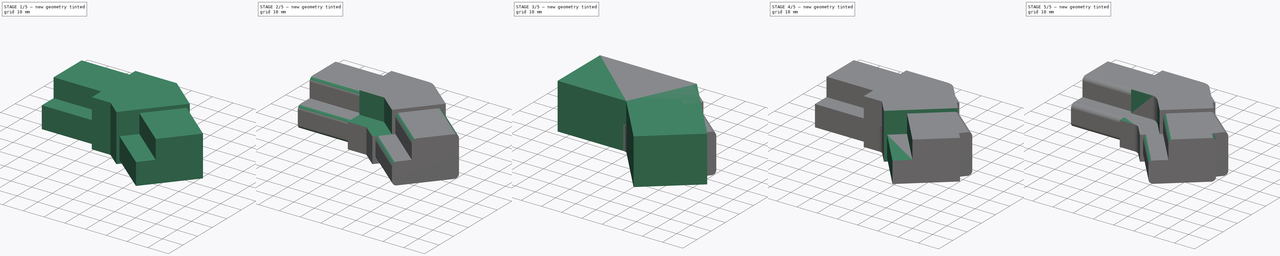
[diagram: build sequence overview — one tinted view per stage of 5, left to right]
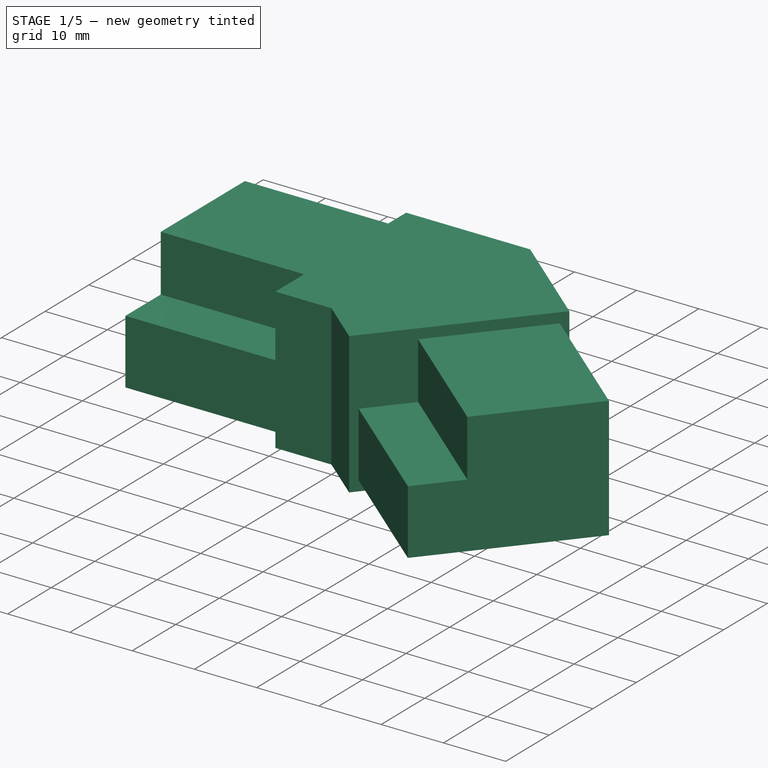
[diagram: stage 1 of 5 — iso view after this stage's code; geometry added in this stage tinted green]
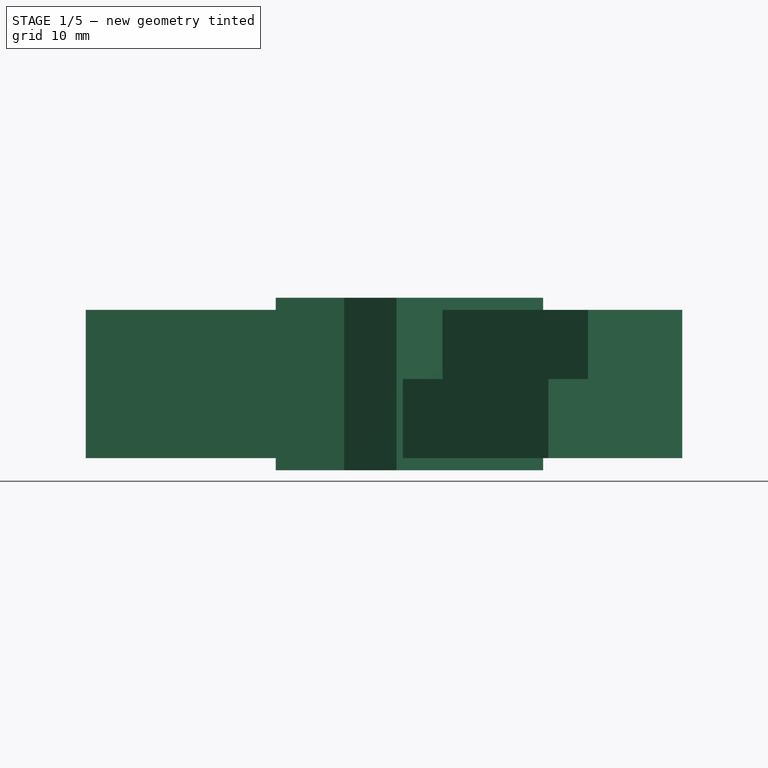
[diagram: stage 1 of 5 — front view after this stage's code; geometry added in this stage tinted green]
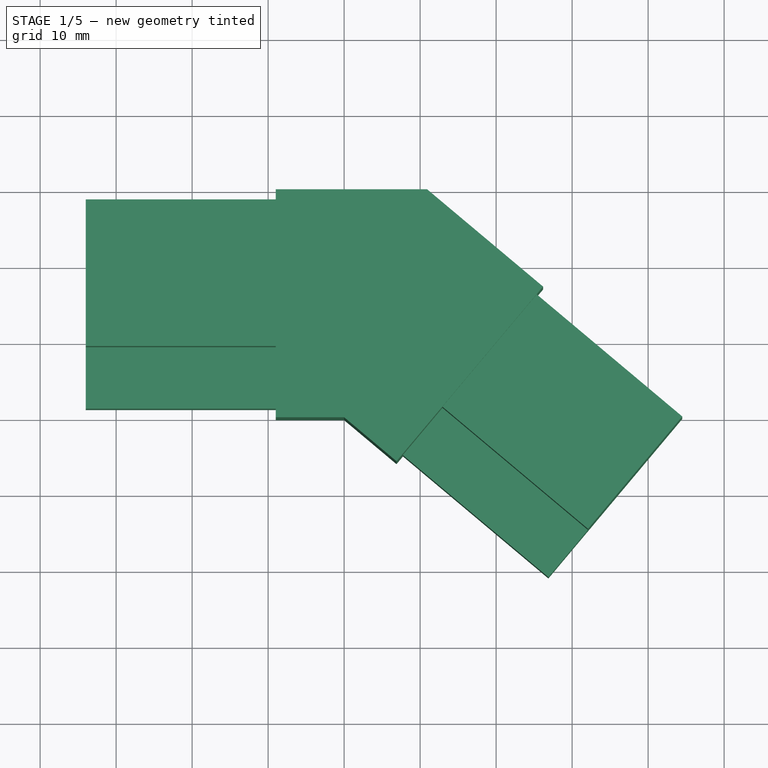
[diagram: stage 1 of 5 — top view after this stage's code; geometry added in this stage tinted green]
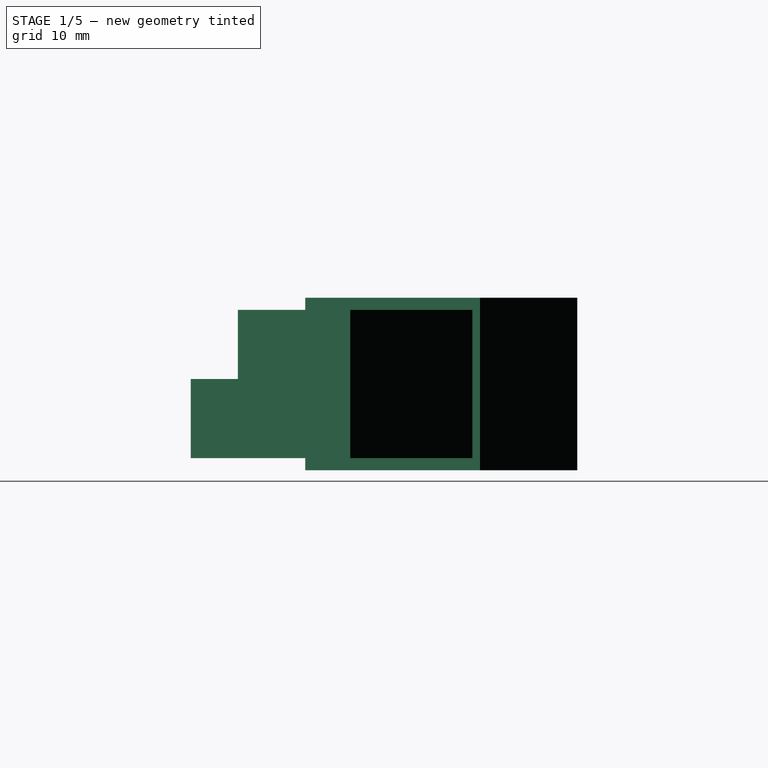
[diagram: stage 1 of 5 — right view after this stage's code; geometry added in this stage tinted green]
FCSTD DOCUMENT  (FreeCAD 2024.2R37179 (Git))
Label: Hor-Deur
License: All rights reserved
LicenseURL: https://en.wikipedia.org/wiki/All_rights_reserved
objects: Sketcher::SketchObject×9, PartDesign::Pocket×7, PartDesign::Fillet×6, PartDesign::Pad×2, PartDesign::Body×2
note: 41 computed .brp shape members not serialized (recipe doc carries the construction recipe); baked Part::Feature solids carry a one-line shape summary decoded from their .brp

FEATURE [PartDesign::Body] Body  label="Body 40 gr"
  Group = -> [Sketch,Pad,Sketch001,Pocket,Sketch002,Pocket001,Fillet,Fillet001,Sketch003,Pocket002,Fillet002]
  Origin = -> Origin
  Tip = -> Fillet002
FEATURE [Sketcher::SketchObject] Sketch004
  AttachmentSupport = -> [XY_Plane001]
  FullyConstrained = true
  MapMode = 5
  sketch-geometry (6):
    g0: LineSegment StartX=-34 StartY=0 StartZ=0 EndX=0 EndY=0 EndZ=0
    g1: LineSegment StartX=0 StartY=0 StartZ=0 EndX=26.0455 EndY=-21.8548 EndZ=0
    g2: LineSegment StartX=26.0455 StartY=-21.8548 StartZ=0 EndX=45.3291 EndY=1.12655 EndZ=0
    g3: LineSegment StartX=45.3291 StartY=1.12655 StartZ=0 EndX=10.9191 EndY=30 EndZ=0
    g4: LineSegment StartX=10.9191 StartY=30 StartZ=0 EndX=-34 EndY=30 EndZ=0
    g5: LineSegment StartX=-34 StartY=30 StartZ=0 EndX=-34 EndY=0 EndZ=0
  constraints (17):
    c: PointOnObject(g0,g-1)
    c: Coincident(g0,g-1)
    c: Coincident(g0,g1)
    c: Coincident(g1,g2)
    c: Coincident(g2,g3)
    c: Coincident(g3,g4)
    c: Horizontal(g4)
    c: Coincident(g4,g5)
    c: Coincident(g5,g0)
    c: Vertical(g5)
    c: Angle(g0,g1) = 2.44346
    c: Angle(g4,g3) = 2.44346
    c: Angle(g2,g1) = 1.5708
    c: DistanceY(g5,g5) = 30
    c: Distance(g2,g2) = 30
    c: DistanceX(g0,g0) = 34
    c: Equal(g0,g1)
FEATURE [PartDesign::Pad] Pad001
  Direction = (0,0,1)
  Length = 22.7
  Length2 = 10
  Profile = -> Sketch004
  ReferenceAxis = -> Sketch004 [N_Axis]
  Refine = true
  Suppressed = false
  Type = 0
FEATURE [Sketcher::SketchObject] Sketch005
  AttachmentSupport = -> [Pad001]
  ExternalGeometry = -> [Pad001]
  FullyConstrained = true
  MapMode = 5
  Placement = pos=(26.0455,-21.8548,0) rot=(0.834817,0.389282,0.389282;1.75037rad)
  sketch-geometry (11):
    g0: LineSegment StartX=1.3 StartY=1.6 StartZ=0 EndX=28.7 EndY=1.6 EndZ=0
    g1: LineSegment StartX=28.7 StartY=1.6 StartZ=0 EndX=28.7 EndY=21.1 EndZ=0
    g2: LineSegment StartX=28.7 StartY=21.1 StartZ=0 EndX=9.4 EndY=21.1 EndZ=0
    g3: LineSegment StartX=9.4 StartY=21.1 StartZ=0 EndX=9.4 EndY=12 EndZ=0
    g4: LineSegment StartX=9.4 StartY=12 StartZ=0 EndX=1.3 EndY=12 EndZ=0
    g5: LineSegment StartX=1.3 StartY=12 StartZ=0 EndX=1.3 EndY=1.6 EndZ=0
    g6: GeomPoint X=15 Y=11.35 Z=0
    g7: LineSegment StartX=0 StartY=22.7 StartZ=0 EndX=0 EndY=0 EndZ=0
    g8: LineSegment StartX=0 StartY=0 StartZ=0 EndX=30 EndY=0 EndZ=0
    g9: LineSegment StartX=30 StartY=0 StartZ=0 EndX=30 EndY=22.7 EndZ=0
    g10: LineSegment StartX=30 StartY=22.7 StartZ=0 EndX=0 EndY=22.7 EndZ=0
  constraints (28):
    c: Horizontal(g0)
    c: Coincident(g0,g1)
    c: Vertical(g1)
    c: Coincident(g1,g2)
    c: Horizontal(g2)
    c: Coincident(g2,g3)
    c: Vertical(g3)
    c: Coincident(g3,g4)
    c: Horizontal(g4)
    c: Coincident(g4,g5)
    c: Coincident(g5,g0)
    c: Vertical(g5)
    c: DistanceX(g0,g0) = 27.4
    c: DistanceX(g2,g2) = 19.3
    c: DistanceY(g5,g5) = 10.4
    c: DistanceY(g1,g1) = 19.5
    c: Symmetric(g0,g1,g6)
    c: Symmetric(g-1,g-3,g6)
    c: Coincident(g7,g8)
    c: Coincident(g8,g9)
    c: Coincident(g9,g10)
    c: Coincident(g10,g7)
    c: Vertical(g7)
    c: Vertical(g9)
    c: Horizontal(g8)
    c: Horizontal(g10)
    c: Coincident(g7,g-3)
    c: Coincident(g8,g-4)
FEATURE [PartDesign::Pocket] Pocket003
  BaseFeature = -> Pad001
  Direction = (-0.766044,0.642788,2e-16)
  Length = 25
  Length2 = 5
  Profile = -> Sketch005
  ReferenceAxis = -> Sketch005 [N_Axis]
  Refine = true
  Suppressed = false
  Type = 0
FEATURE [Sketcher::SketchObject] Sketch006
  AttachmentSupport = -> [Pocket003]
  ExternalGeometry = -> [Pocket003]
  FullyConstrained = true
  MapMode = 5
  Placement = pos=(-34,0,0) rot=(0.57735,-0.57735,-0.57735;2.0944rad)
  sketch-geometry (11):
    g0: LineSegment StartX=-28.7 StartY=21.1 StartZ=0 EndX=-28.7 EndY=1.6 EndZ=0
    g1: LineSegment StartX=-28.7 StartY=1.6 StartZ=0 EndX=-1.3 EndY=1.6 EndZ=0
    g2: LineSegment StartX=-1.3 StartY=1.6 StartZ=0 EndX=-1.3 EndY=12 EndZ=0
    g3: LineSegment StartX=-1.3 StartY=12 StartZ=0 EndX=-9.4 EndY=12 EndZ=0
    g4: LineSegment StartX=-9.4 StartY=12 StartZ=0 EndX=-9.4 EndY=21.1 EndZ=0
    g5: LineSegment StartX=-9.4 StartY=21.1 StartZ=0 EndX=-28.7 EndY=21.1 EndZ=0
    g6: GeomPoint X=-15 Y=11.35 Z=0
    g7: LineSegment StartX=-30 StartY=22.7 StartZ=0 EndX=-30 EndY=0 EndZ=0
    g8: LineSegment StartX=-30 StartY=0 StartZ=0 EndX=0 EndY=0 EndZ=0
    g9: LineSegment StartX=0 StartY=0 StartZ=0 EndX=0 EndY=22.7 EndZ=0
    g10: LineSegment StartX=0 StartY=22.7 StartZ=0 EndX=-30 EndY=22.7 EndZ=0
  constraints (28):
    c: Vertical(g0)
    c: Coincident(g0,g1)
    c: Horizontal(g1)
    c: Coincident(g1,g2)
    c: Vertical(g2)
    c: Coincident(g2,g3)
    c: Coincident(g3,g4)
    c: Coincident(g4,g5)
    c: Coincident(g5,g0)
    c: Horizontal(g5)
    c: Vertical(g4)
    c: Horizontal(g3)
    c: DistanceX(g5,g5) = 19.3
    c: DistanceX(g1,g1) = 27.4
    c: DistanceY(g0,g0) = 19.5
    c: DistanceY(g2,g2) = 10.4
    c: Symmetric(g0,g1,g6)
    c: Symmetric(g-3,g-1,g6)
    c: Coincident(g7,g8)
    c: Coincident(g8,g9)
    c: Coincident(g9,g10)
    c: Coincident(g10,g7)
    c: Vertical(g7)
    c: Vertical(g9)
    c: Horizontal(g8)
    c: Horizontal(g10)
    c: Coincident(g7,g-3)
    c: Coincident(g8,g-1)
FEATURE [PartDesign::Pocket] Pocket004
  BaseFeature = -> Pocket003
  Direction = (1,0,0)
  Length = 25
  Length2 = 5
  Profile = -> Sketch006
  ReferenceAxis = -> Sketch006 [N_Axis]
  Refine = true
  Suppressed = false
  Type = 0
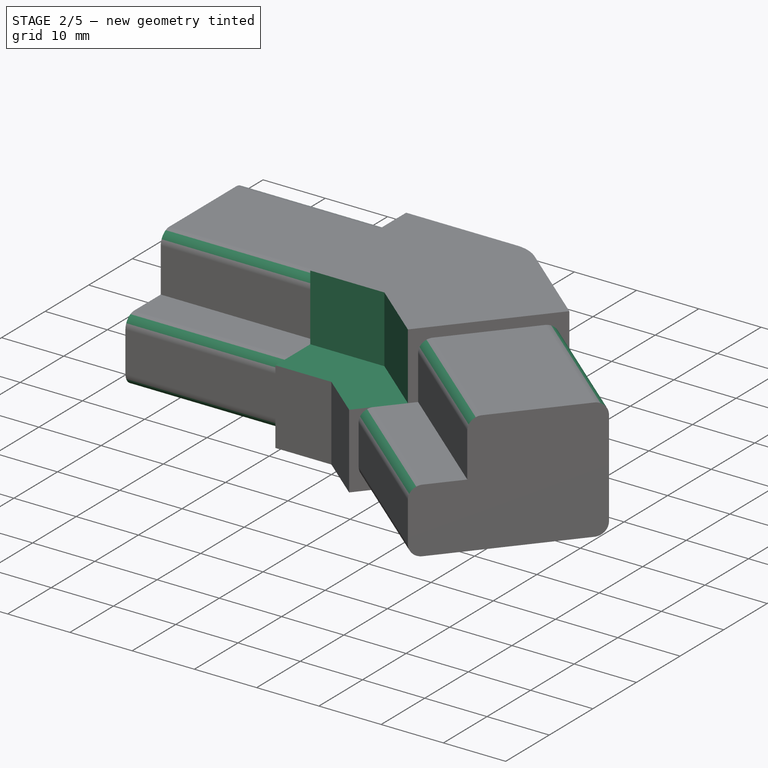
[diagram: stage 2 of 5 — iso view after this stage's code; geometry added in this stage tinted green]
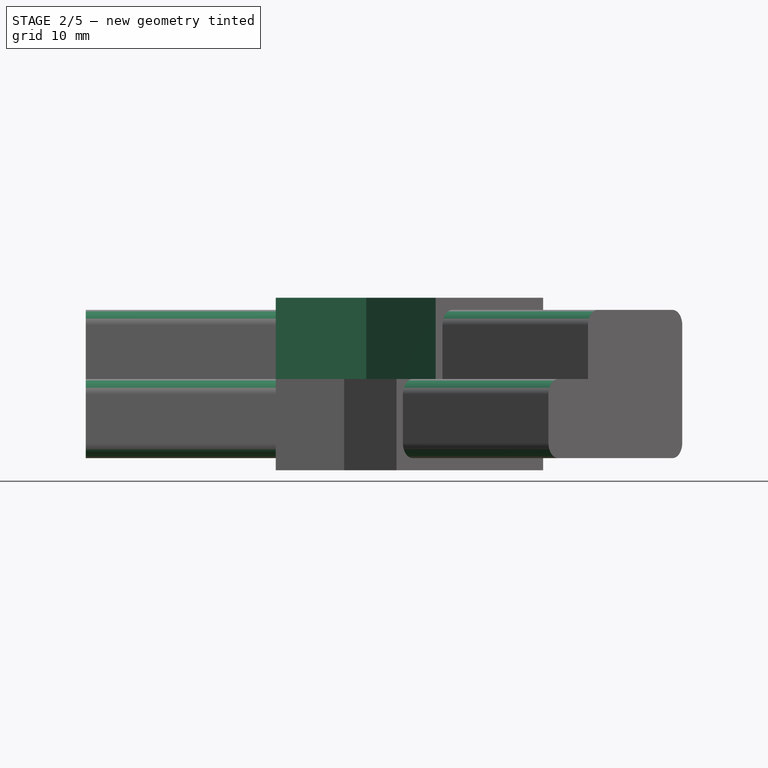
[diagram: stage 2 of 5 — front view after this stage's code; geometry added in this stage tinted green]
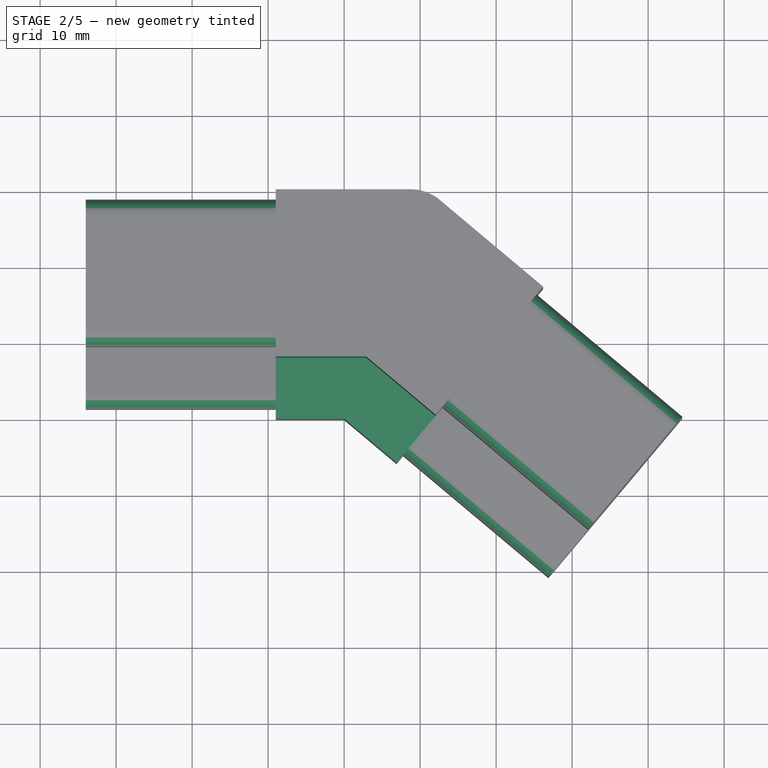
[diagram: stage 2 of 5 — top view after this stage's code; geometry added in this stage tinted green]
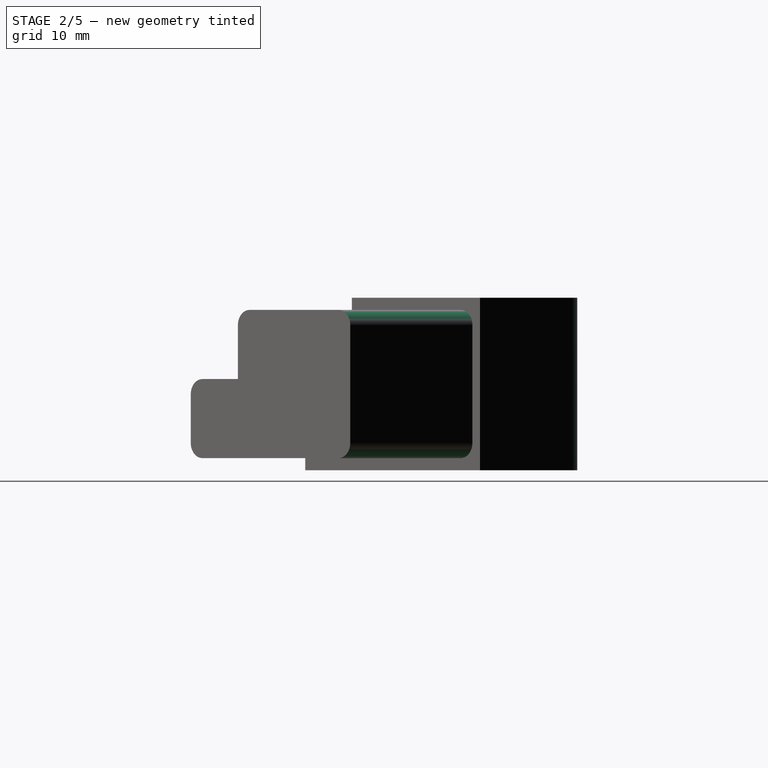
[diagram: stage 2 of 5 — right view after this stage's code; geometry added in this stage tinted green]
FEATURE [PartDesign::Fillet] Fillet003
  Base = -> Pocket004 [Edge23]
  BaseFeature = -> Pocket004
  Radius = 6
  Refine = true
  SupportTransform = false
  Suppressed = false
  UseAllEdges = false
FEATURE [PartDesign::Fillet] Fillet004
  Base = -> Fillet003 [Edge51,Edge55,Edge46,Edge49,Edge47,Edge35,Edge37,Edge39,Edge43,Edge34]
  BaseFeature = -> Fillet003
  Radius = 2
  Refine = true
  SupportTransform = false
  Suppressed = false
  UseAllEdges = false
FEATURE [Sketcher::SketchObject] Sketch007
  ExternalGeometry = -> [Fillet004]
  FullyConstrained = true
  MapMode = 5
  Placement = pos=(0,0,22.7) rot=(0,0,1;0rad)
  sketch-geometry (6):
    g0: LineSegment StartX=-9 StartY=0 StartZ=0 EndX=0 EndY=0 EndZ=0
    g1: LineSegment StartX=0 StartY=0 StartZ=0 EndX=6.8944 EndY=-5.78509 EndZ=0
    g2: LineSegment StartX=6.8944 StartY=-5.78509 StartZ=0 EndX=12.0367 EndY=0.343267 EndZ=0
    g3: LineSegment StartX=12.0367 StartY=0.343267 StartZ=0 EndX=2.91176 EndY=8 EndZ=0
    g4: LineSegment StartX=2.91176 StartY=8 StartZ=0 EndX=-9 EndY=8 EndZ=0
    g5: LineSegment StartX=-9 StartY=8 StartZ=0 EndX=-9 EndY=0 EndZ=0
  constraints (15):
    c: Coincident(g-6,g0)
    c: Coincident(g0,g-1)
    c: Coincident(g0,g1)
    c: Coincident(g1,g-5)
    c: Coincident(g1,g2)
    c: PointOnObject(g2,g-4)
    c: Coincident(g2,g3)
    c: Coincident(g3,g4)
    c: PointOnObject(g4,g-3)
    c: Horizontal(g4)
    c: Coincident(g4,g5)
    c: Coincident(g5,g0)
    c: Distance(g2,g2) = 8
    c: Equal(g5,g2)
    c: Parallel(g3,g-7)
FEATURE [PartDesign::Pocket] Pocket005
  BaseFeature = -> Fillet004
  Direction = (0,0,-1)
  Length = 0
  Length2 = 5
  Profile = -> Sketch007
  ReferenceAxis = -> Sketch007 [N_Axis]
  Refine = true
  Suppressed = false
  Type = 3
  UpToFace = -> Fillet004 [Face29]
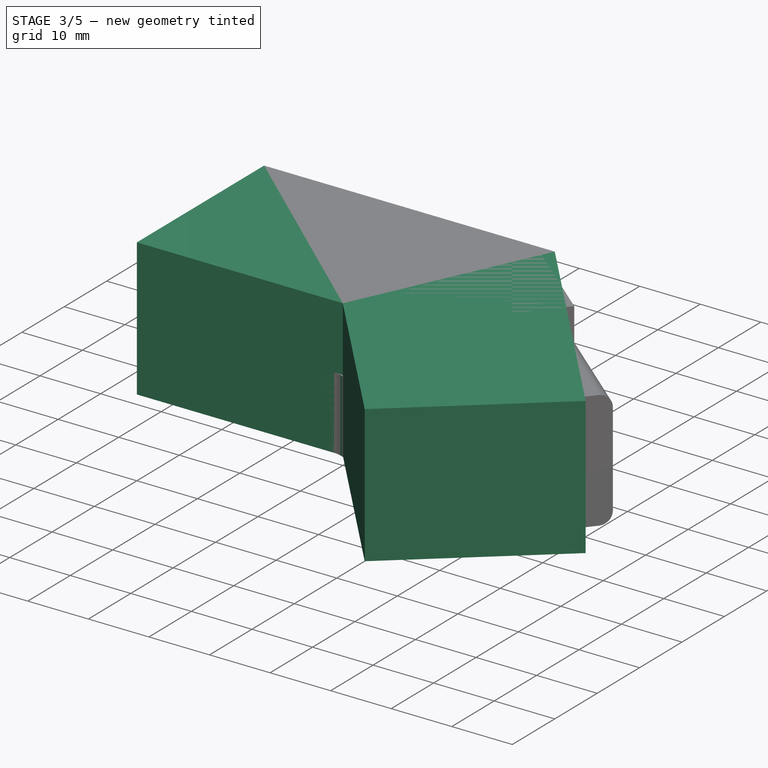
[diagram: stage 3 of 5 — iso view after this stage's code; geometry added in this stage tinted green]
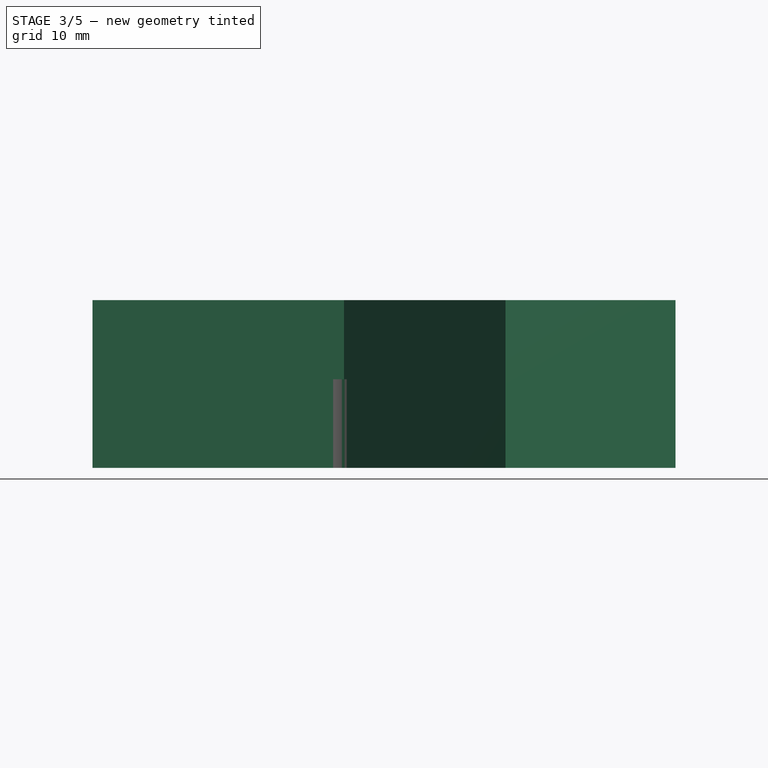
[diagram: stage 3 of 5 — front view after this stage's code; geometry added in this stage tinted green]
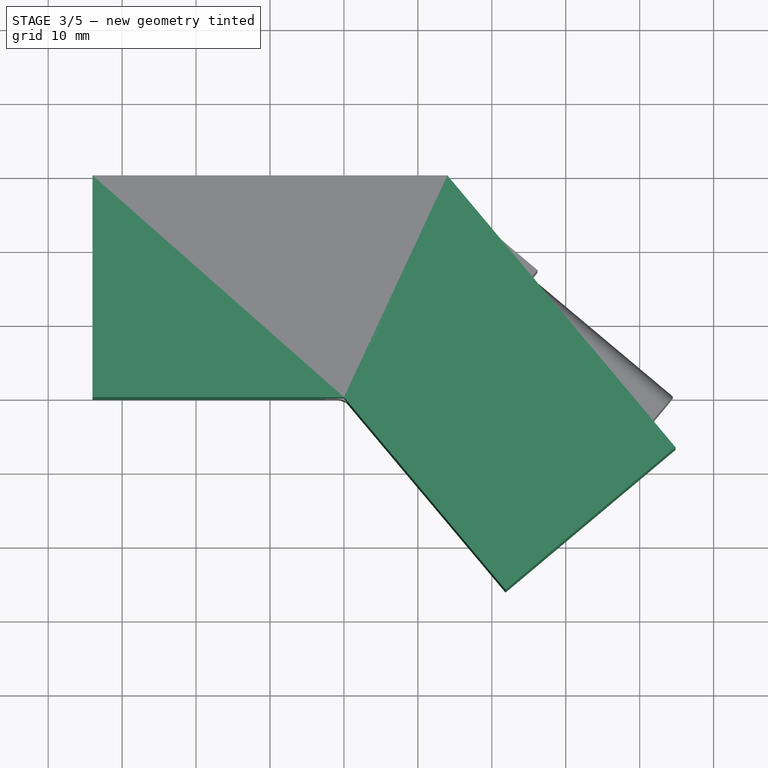
[diagram: stage 3 of 5 — top view after this stage's code; geometry added in this stage tinted green]
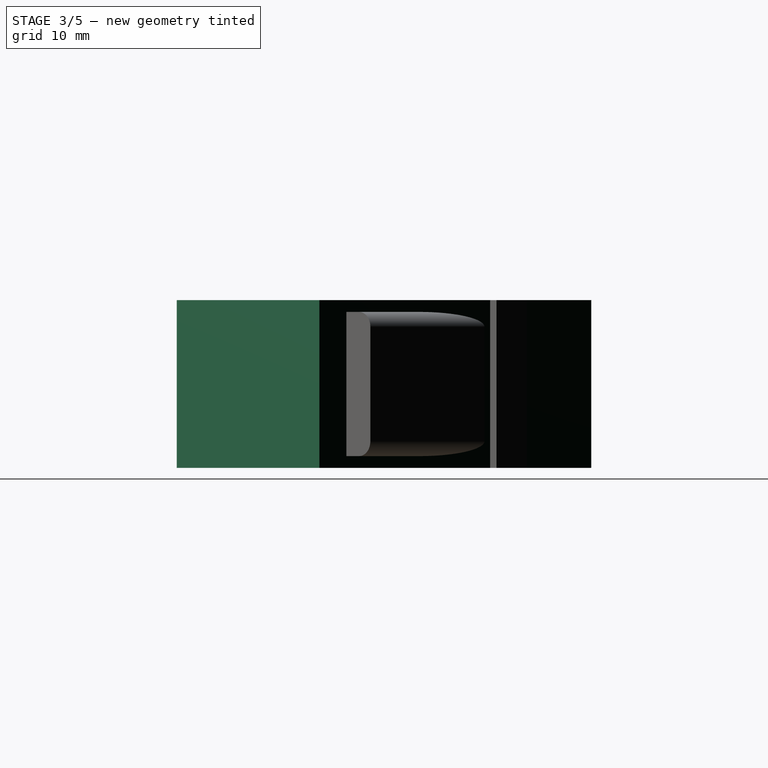
[diagram: stage 3 of 5 — right view after this stage's code; geometry added in this stage tinted green]
FEATURE [Sketcher::SketchObject] Sketch
  AttachmentSupport = -> [XY_Plane]
  FullyConstrained = true
  MapMode = 5
  sketch-geometry (6):
    g0: LineSegment StartX=-34 StartY=0 StartZ=0 EndX=0 EndY=0 EndZ=0
    g1: LineSegment StartX=0 StartY=0 StartZ=0 EndX=21.8548 EndY=-26.0455 EndZ=0
    g2: LineSegment StartX=21.8548 StartY=-26.0455 StartZ=0 EndX=44.8361 EndY=-6.76188 EndZ=0
    g3: LineSegment StartX=44.8361 StartY=-6.76188 StartZ=0 EndX=13.9892 EndY=30 EndZ=0
    g4: LineSegment StartX=13.9892 StartY=30 StartZ=0 EndX=-34 EndY=30 EndZ=0
    g5: LineSegment StartX=-34 StartY=30 StartZ=0 EndX=-34 EndY=0 EndZ=0
  constraints (17):
    c: PointOnObject(g0,g-1)
    c: Coincident(g0,g-1)
    c: Coincident(g0,g1)
    c: Coincident(g1,g2)
    c: Coincident(g2,g3)
    c: Coincident(g3,g4)
    c: Horizontal(g4)
    c: Coincident(g4,g5)
    c: Coincident(g5,g0)
    c: Vertical(g5)
    c: Angle(g0,g1) = 2.26893
    c: Angle(g4,g3) = 2.26893
    c: Angle(g2,g1) = 1.5708
    c: DistanceY(g5,g5) = 30
    c: Distance(g2,g2) = 30
    c: DistanceX(g0,g0) = 34
    c: Equal(g0,g1)
FEATURE [PartDesign::Pad] Pad
  Direction = (0,0,1)
  Length = 22.7
  Length2 = 10
  Profile = -> Sketch
  ReferenceAxis = -> Sketch [N_Axis]
  Refine = true
  Suppressed = false
  Type = 0
FEATURE [PartDesign::Fillet] Fillet005
  Base = -> Pocket005 [Edge45,Edge32]
  BaseFeature = -> Pocket005
  Radius = 4
  Refine = true
  SupportTransform = false
  Suppressed = false
  UseAllEdges = false
FEATURE [Sketcher::SketchObject] Sketch008
  AttachmentSupport = -> [Fillet005]
  ExternalGeometry = -> [Fillet005]
  FullyConstrained = true
  MapMode = 5
  Placement = pos=(0,0,22.7) rot=(0,0,1;0rad)
  sketch-geometry (4):
    g0: LineSegment StartX=-9 StartY=30 StartZ=0 EndX=10.9191 EndY=30 EndZ=0
    g1: LineSegment StartX=26.178 StartY=17.1962 StartZ=0 EndX=10.9191 EndY=30 EndZ=0
    g2: LineSegment StartX=10.9191 StartY=30 StartZ=0 EndX=-5.68089 EndY=30 EndZ=0
    g3: LineSegment StartX=-5.68089 StartY=30 StartZ=0 EndX=-9 EndY=30 EndZ=0
  constraints (9):
    c: Coincident(g-3,g0)
    c: Horizontal(g0)
    c: Tangent(g-4,g1) = -1.5708
    c: Coincident(g1,g0)
    c: Coincident(g0,g2)
    c: PointOnObject(g2,g0)
    c: DistanceX(g2,g2) = 16.6
    c: Coincident(g2,g3)
    c: Coincident(g3,g0)
FEATURE [PartDesign::Pocket] Pocket006
  BaseFeature = -> Fillet005
  Direction = (1,0,0)
  Length = 6.4
  Length2 = 5
  Profile = -> Fillet005 [Face4]
  Refine = true
  Suppressed = false
  Type = 0
FEATURE [PartDesign::Body] Body001  label="Body 50 gr"
  Group = -> [Sketch004,Pad001,Sketch005,Pocket003,Sketch006,Pocket004,Fillet003,Fillet004,Sketch007,Pocket005,Fillet005,Sketch008,Pocket006]
  Origin = -> Origin001
  Placement = pos=(-77,0,0) rot=(0,0,1;0rad)
  Tip = -> Pocket006
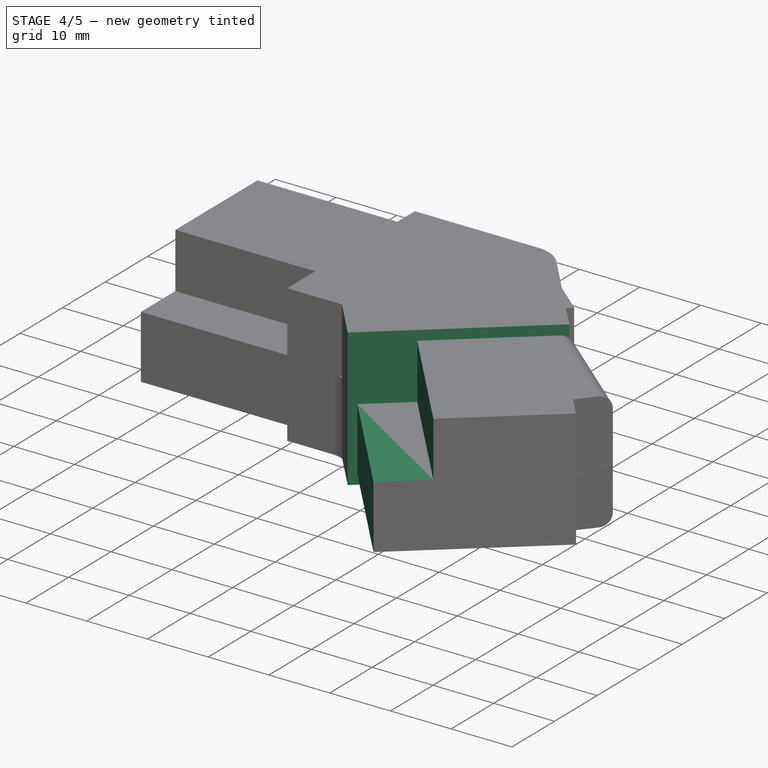
[diagram: stage 4 of 5 — iso view after this stage's code; geometry added in this stage tinted green]
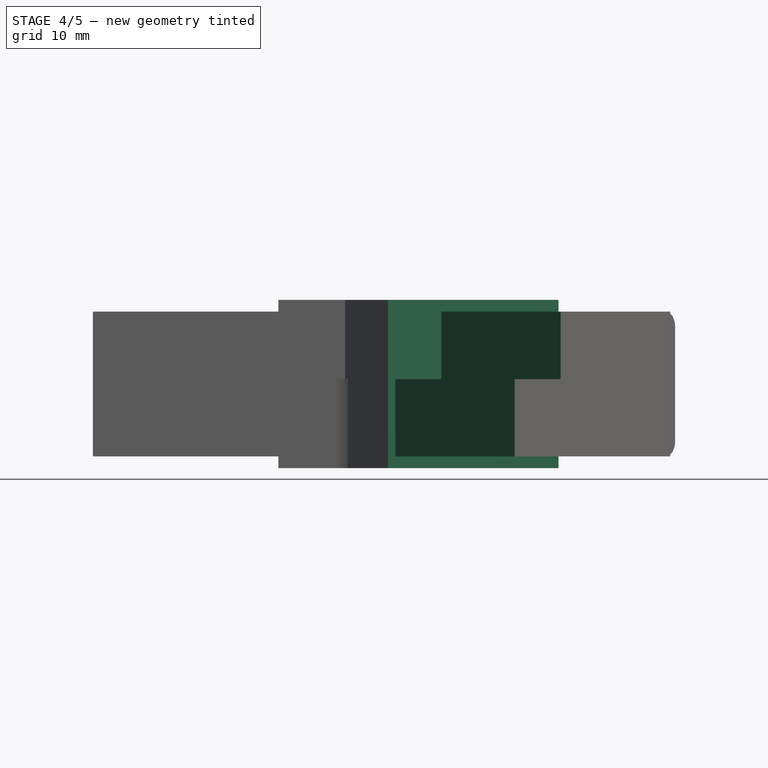
[diagram: stage 4 of 5 — front view after this stage's code; geometry added in this stage tinted green]
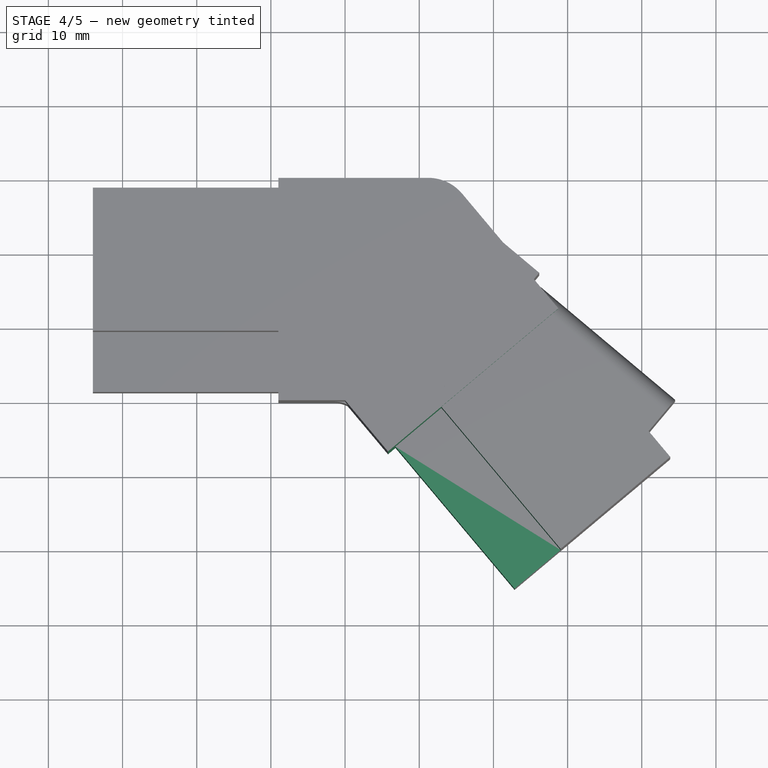
[diagram: stage 4 of 5 — top view after this stage's code; geometry added in this stage tinted green]
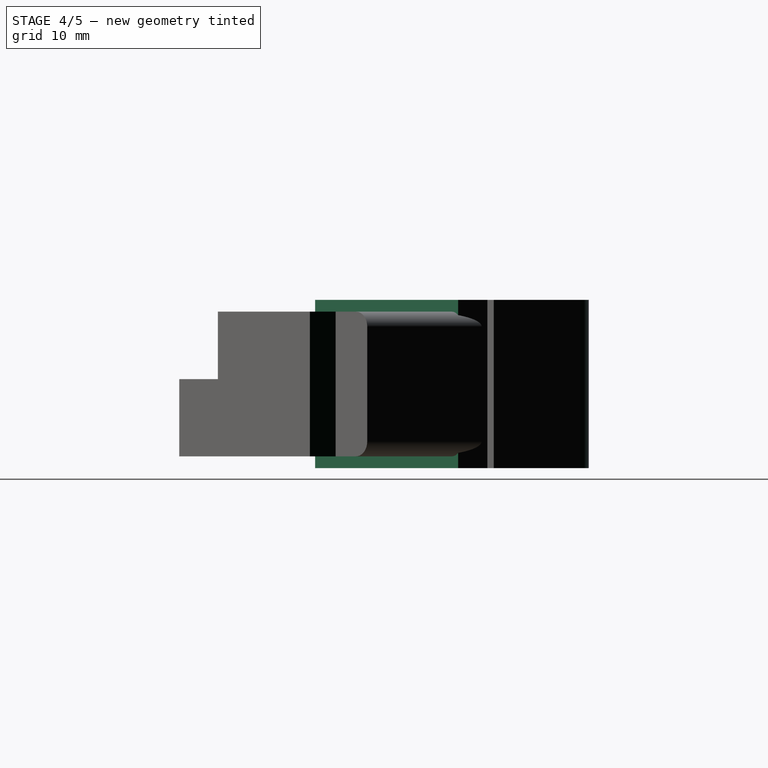
[diagram: stage 4 of 5 — right view after this stage's code; geometry added in this stage tinted green]
FEATURE [Sketcher::SketchObject] Sketch001
  AttachmentSupport = -> [Pad]
  ExternalGeometry = -> [Pad]
  FullyConstrained = true
  MapMode = 5
  Placement = pos=(21.8548,-26.0455,0) rot=(0.889126,0.323616,0.323616;1.68804rad)
  sketch-geometry (11):
    g0: LineSegment StartX=1.3 StartY=1.6 StartZ=0 EndX=28.7 EndY=1.6 EndZ=0
    g1: LineSegment StartX=28.7 StartY=1.6 StartZ=0 EndX=28.7 EndY=21.1 EndZ=0
    g2: LineSegment StartX=28.7 StartY=21.1 StartZ=0 EndX=9.4 EndY=21.1 EndZ=0
    g3: LineSegment StartX=9.4 StartY=21.1 StartZ=0 EndX=9.4 EndY=12 EndZ=0
    g4: LineSegment StartX=9.4 StartY=12 StartZ=0 EndX=1.3 EndY=12 EndZ=0
    g5: LineSegment StartX=1.3 StartY=12 StartZ=0 EndX=1.3 EndY=1.6 EndZ=0
    g6: GeomPoint X=15 Y=11.35 Z=0
    g7: LineSegment StartX=0 StartY=22.7 StartZ=0 EndX=0 EndY=0 EndZ=0
    g8: LineSegment StartX=0 StartY=0 StartZ=0 EndX=30 EndY=0 EndZ=0
    g9: LineSegment StartX=30 StartY=0 StartZ=0 EndX=30 EndY=22.7 EndZ=0
    g10: LineSegment StartX=30 StartY=22.7 StartZ=0 EndX=0 EndY=22.7 EndZ=0
  constraints (28):
    c: Horizontal(g0)
    c: Coincident(g0,g1)
    c: Vertical(g1)
    c: Coincident(g1,g2)
    c: Horizontal(g2)
    c: Coincident(g2,g3)
    c: Vertical(g3)
    c: Coincident(g3,g4)
    c: Horizontal(g4)
    c: Coincident(g4,g5)
    c: Coincident(g5,g0)
    c: Vertical(g5)
    c: DistanceX(g0,g0) = 27.4
    c: DistanceX(g2,g2) = 19.3
    c: DistanceY(g5,g5) = 10.4
    c: DistanceY(g1,g1) = 19.5
    c: Symmetric(g0,g1,g6)
    c: Symmetric(g-1,g-3,g6)
    c: Coincident(g7,g8)
    c: Coincident(g8,g9)
    c: Coincident(g9,g10)
    c: Coincident(g10,g7)
    c: Vertical(g7)
    c: Vertical(g9)
    c: Horizontal(g8)
    c: Horizontal(g10)
    c: Coincident(g7,g-3)
    c: Coincident(g8,g-4)
FEATURE [PartDesign::Pocket] Pocket
  BaseFeature = -> Pad
  Direction = (-0.642788,0.766044,0)
  Length = 25
  Length2 = 5
  Profile = -> Sketch001
  ReferenceAxis = -> Sketch001 [N_Axis]
  Refine = true
  Suppressed = false
  Type = 0
FEATURE [Sketcher::SketchObject] Sketch002
  AttachmentSupport = -> [Pocket]
  ExternalGeometry = -> [Pocket]
  FullyConstrained = true
  MapMode = 5
  Placement = pos=(-34,0,0) rot=(0.57735,-0.57735,-0.57735;2.0944rad)
  sketch-geometry (11):
    g0: LineSegment StartX=-28.7 StartY=21.1 StartZ=0 EndX=-28.7 EndY=1.6 EndZ=0
    g1: LineSegment StartX=-28.7 StartY=1.6 StartZ=0 EndX=-1.3 EndY=1.6 EndZ=0
    g2: LineSegment StartX=-1.3 StartY=1.6 StartZ=0 EndX=-1.3 EndY=12 EndZ=0
    g3: LineSegment StartX=-1.3 StartY=12 StartZ=0 EndX=-9.4 EndY=12 EndZ=0
    g4: LineSegment StartX=-9.4 StartY=12 StartZ=0 EndX=-9.4 EndY=21.1 EndZ=0
    g5: LineSegment StartX=-9.4 StartY=21.1 StartZ=0 EndX=-28.7 EndY=21.1 EndZ=0
    g6: GeomPoint X=-15 Y=11.35 Z=0
    g7: LineSegment StartX=-30 StartY=22.7 StartZ=0 EndX=-30 EndY=0 EndZ=0
    g8: LineSegment StartX=-30 StartY=0 StartZ=0 EndX=0 EndY=0 EndZ=0
    g9: LineSegment StartX=0 StartY=0 StartZ=0 EndX=0 EndY=22.7 EndZ=0
    g10: LineSegment StartX=0 StartY=22.7 StartZ=0 EndX=-30 EndY=22.7 EndZ=0
  constraints (28):
    c: Vertical(g0)
    c: Coincident(g0,g1)
    c: Horizontal(g1)
    c: Coincident(g1,g2)
    c: Vertical(g2)
    c: Coincident(g2,g3)
    c: Coincident(g3,g4)
    c: Coincident(g4,g5)
    c: Coincident(g5,g0)
    c: Horizontal(g5)
    c: Vertical(g4)
    c: Horizontal(g3)
    c: DistanceX(g5,g5) = 19.3
    c: DistanceX(g1,g1) = 27.4
    c: DistanceY(g0,g0) = 19.5
    c: DistanceY(g2,g2) = 10.4
    c: Symmetric(g0,g1,g6)
    c: Symmetric(g-3,g-1,g6)
    c: Coincident(g7,g8)
    c: Coincident(g8,g9)
    c: Coincident(g9,g10)
    c: Coincident(g10,g7)
    c: Vertical(g7)
    c: Vertical(g9)
    c: Horizontal(g8)
    c: Horizontal(g10)
    c: Coincident(g7,g-3)
    c: Coincident(g8,g-1)
FEATURE [PartDesign::Pocket] Pocket001
  BaseFeature = -> Pocket
  Direction = (1,0,0)
  Length = 25
  Length2 = 5
  Profile = -> Sketch002
  ReferenceAxis = -> Sketch002 [N_Axis]
  Refine = true
  Suppressed = false
  Type = 0
FEATURE [PartDesign::Fillet] Fillet
  Base = -> Pocket001 [Edge23]
  BaseFeature = -> Pocket001
  Radius = 6
  Refine = true
  SupportTransform = false
  Suppressed = false
  UseAllEdges = false
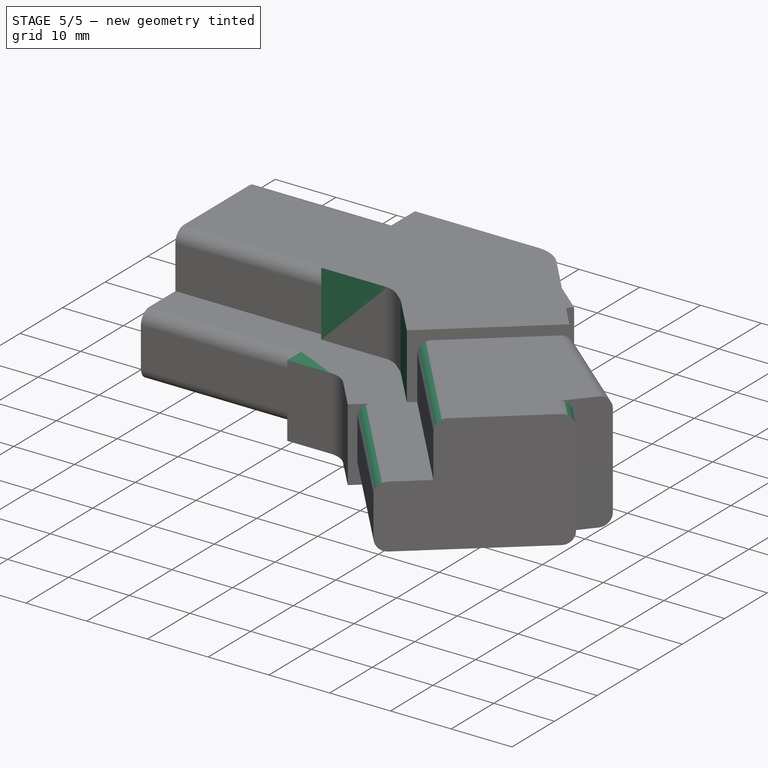
[diagram: stage 5 of 5 — iso view after this stage's code; geometry added in this stage tinted green]
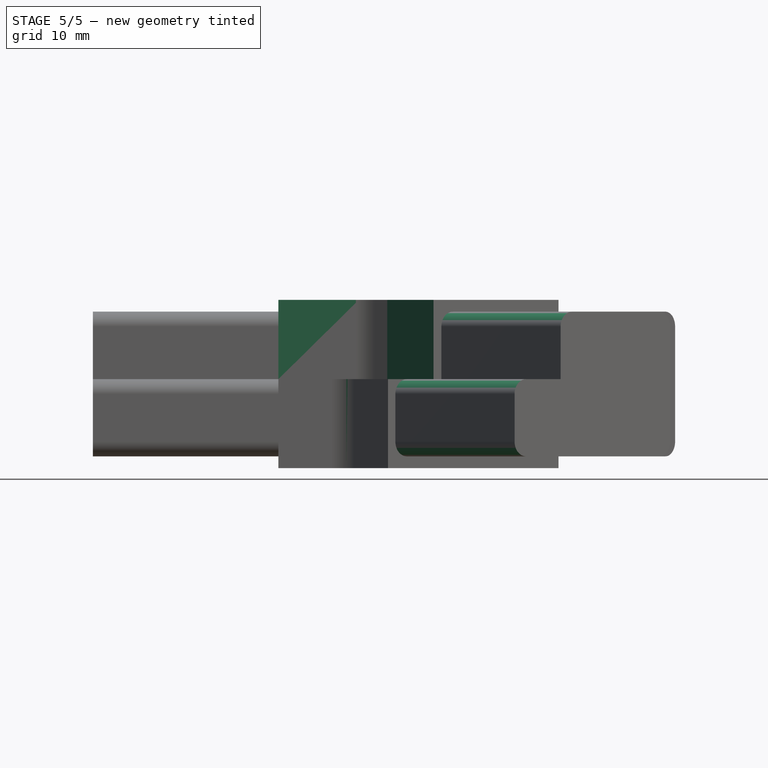
[diagram: stage 5 of 5 — front view after this stage's code; geometry added in this stage tinted green]
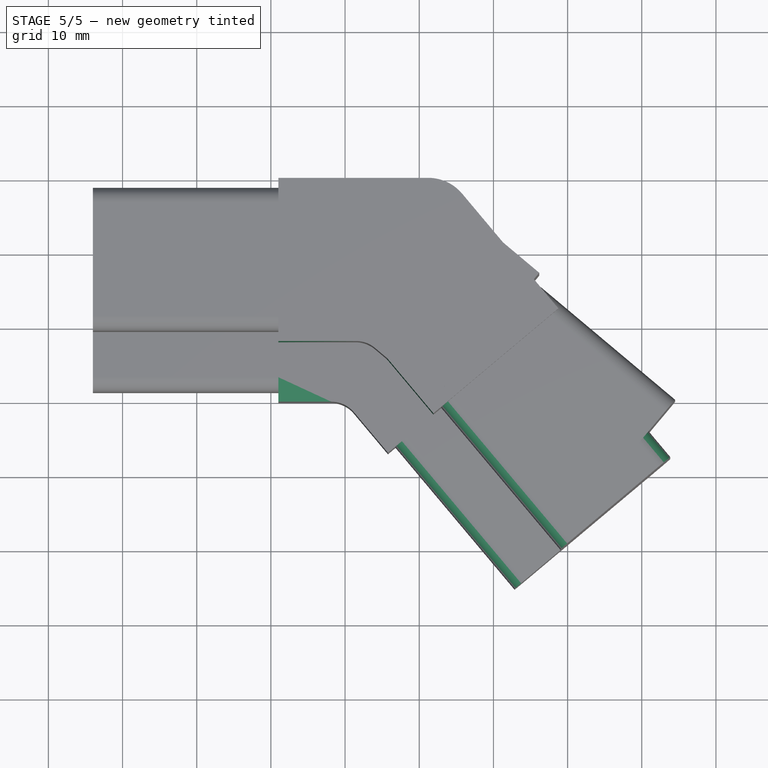
[diagram: stage 5 of 5 — top view after this stage's code; geometry added in this stage tinted green]
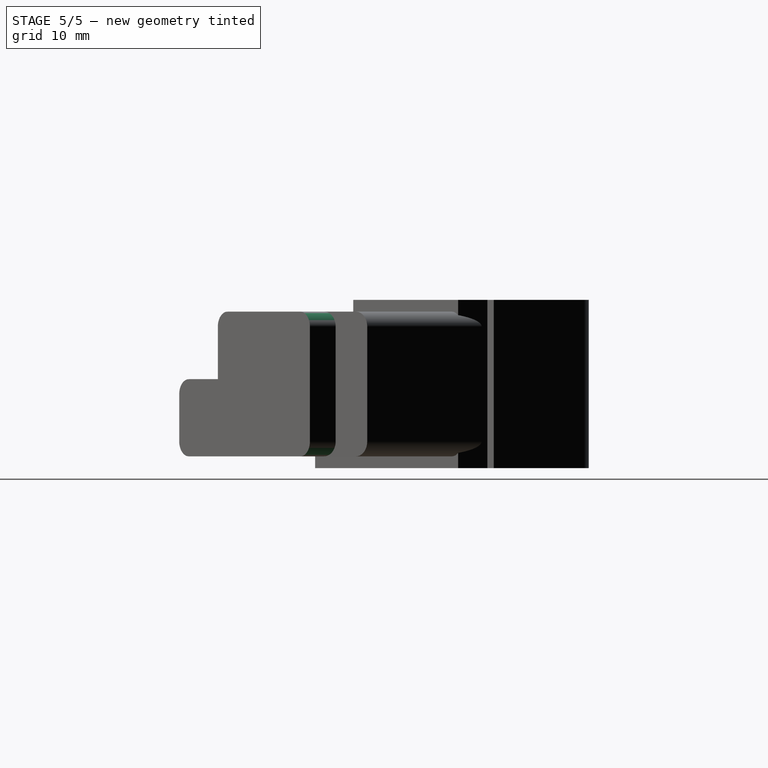
[diagram: stage 5 of 5 — right view after this stage's code; geometry added in this stage tinted green]
FEATURE [PartDesign::Fillet] Fillet001
  Base = -> Fillet [Edge51,Edge55,Edge46,Edge49,Edge47,Edge35,Edge37,Edge39,Edge43,Edge34]
  BaseFeature = -> Fillet
  Radius = 2
  Refine = true
  SupportTransform = false
  Suppressed = false
  UseAllEdges = false
FEATURE [Sketcher::SketchObject] Sketch003
  ExternalGeometry = -> [Fillet001]
  FullyConstrained = true
  MapMode = 5
  Placement = pos=(0,0,22.7) rot=(0,0,1;0rad)
  sketch-geometry (6):
    g0: LineSegment StartX=-9 StartY=0 StartZ=0 EndX=0 EndY=0 EndZ=0
    g1: LineSegment StartX=0 StartY=0 StartZ=0 EndX=5.78509 EndY=-6.8944 EndZ=0
    g2: LineSegment StartX=5.78509 StartY=-6.8944 StartZ=0 EndX=11.9134 EndY=-1.7521 EndZ=0
    g3: LineSegment StartX=11.9134 StartY=-1.7521 StartZ=0 EndX=3.73046 EndY=8 EndZ=0
    g4: LineSegment StartX=3.73046 StartY=8 StartZ=0 EndX=-9 EndY=8 EndZ=0
    g5: LineSegment StartX=-9 StartY=8 StartZ=0 EndX=-9 EndY=0 EndZ=0
  constraints (15):
    c: Coincident(g-6,g0)
    c: Coincident(g0,g-1)
    c: Coincident(g0,g1)
    c: Coincident(g1,g-5)
    c: Coincident(g1,g2)
    c: PointOnObject(g2,g-4)
    c: Coincident(g2,g3)
    c: Coincident(g3,g4)
    c: PointOnObject(g4,g-3)
    c: Horizontal(g4)
    c: Coincident(g4,g5)
    c: Coincident(g5,g0)
    c: Distance(g2,g2) = 8
    c: Equal(g5,g2)
    c: Parallel(g3,g-7)
FEATURE [PartDesign::Pocket] Pocket002
  BaseFeature = -> Fillet001
  Direction = (0,0,-1)
  Length = 0
  Length2 = 5
  Profile = -> Sketch003
  ReferenceAxis = -> Sketch003 [N_Axis]
  Refine = true
  Suppressed = false
  Type = 3
  UpToFace = -> Fillet001 [Face29]
FEATURE [PartDesign::Fillet] Fillet002
  Base = -> Pocket002 [Edge45,Edge32]
  BaseFeature = -> Pocket002
  Radius = 4
  Refine = true
  SupportTransform = false
  Suppressed = false
  UseAllEdges = false
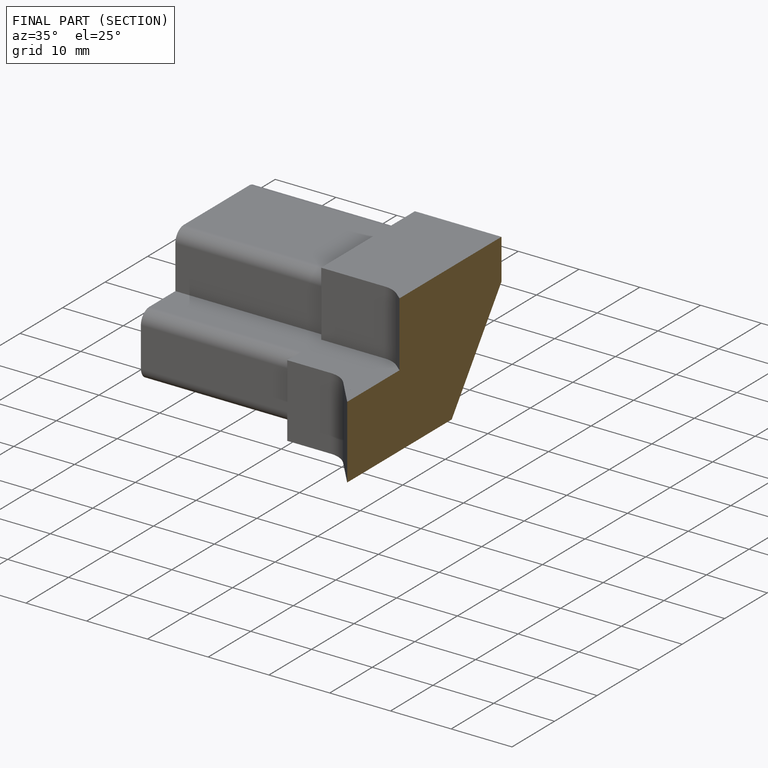
[diagram: finished part — half-section view (interior)]
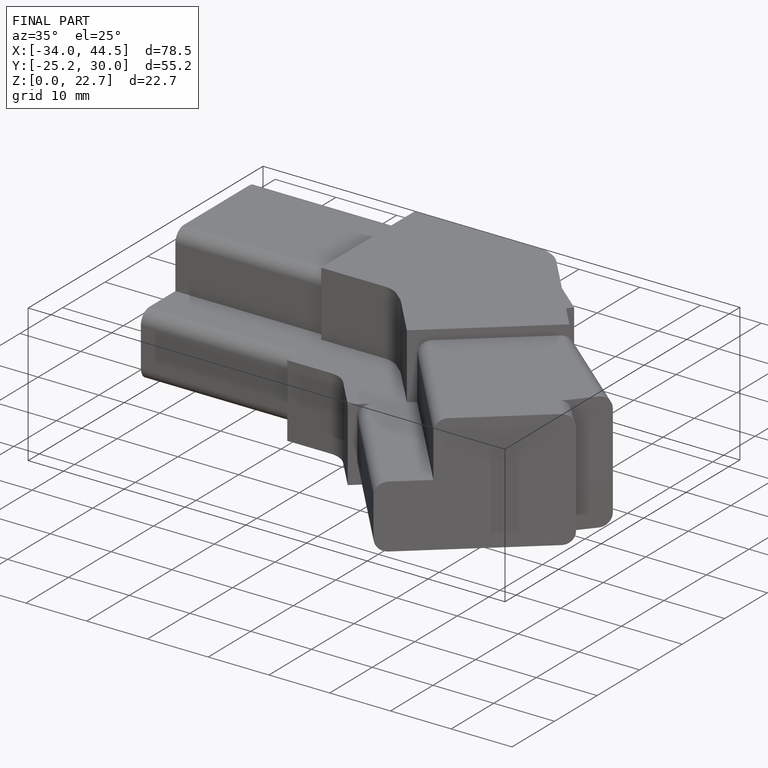
[diagram: finished part — iso view with bounding-box wireframe]
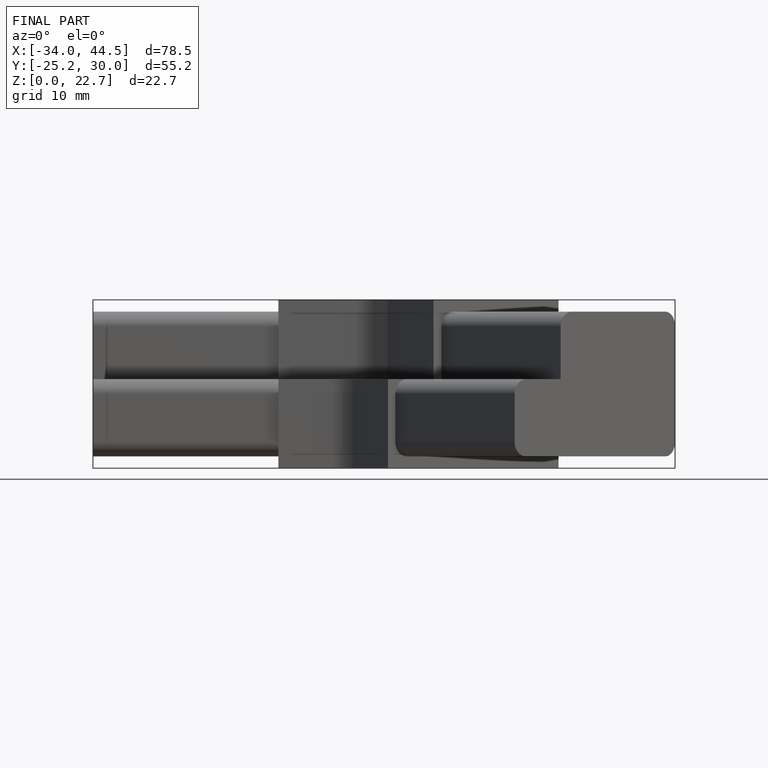
[diagram: finished part — front view with bounding-box wireframe]
